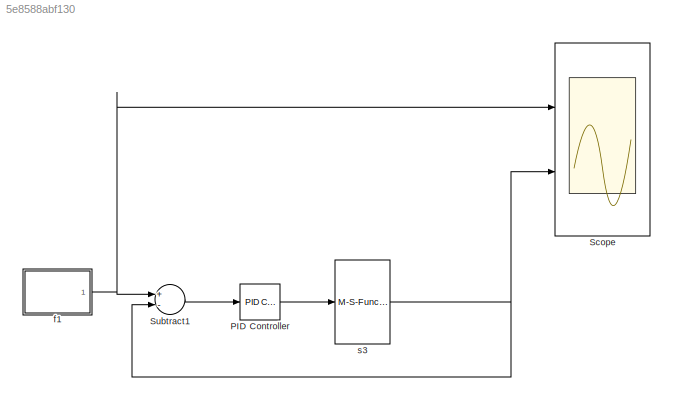
MODEL slx_5e8588abf130
KIND model
CONFIG AbsTol = auto
CONFIG EnableMultiTasking = off
CONFIG FixedStep = auto
CONFIG MaxStep = auto
CONFIG MinStep = auto
CONFIG RelTol = 1e-3
CONFIG SampleTimeConstraint = Unconstrained
CONFIG Solver = VariableStepAuto
CONFIG SolverName = VariableStepAuto
CONFIG StartTime = 0.0
CONFIG StopTime = 200
BLOCK [Reference] PID Controller  REF=simulink/Continuous/PID Controller
  Ports = [1, 1]
  SourceBlock = simulink/Continuous/PID Controller
  SourceProductBaseCode = SL
  SourceProductName = Simulink
  SourceType = PID 1dof
BLOCK [Scope] Scope
  Floating = off
  NumInputPorts = 2
  Ports = [2]
  ScopeSpecificationString = Simulink.scopes.TimeScopeBlockCfg('CurrentConfiguration', extmgr.ConfigurationSet(extmgr.Configuration('Core','General UI',true),extmgr.Configuration('Core','Source UI',true),extmgr.Configuration('Sources','WiredSimulink',true),extmgr.Configuration('Visuals','Time Domain',true,'SerializedDisplays',{struct('MinYLimReal','-1.45352','MaxYLimReal','2.29667','YLabelReal','','MinYLimMag','0.00000','MaxY...<+1424ch>
BLOCK [Sum] Subtract1
  InputSameDT = off
  Inputs = +-
  OutDataTypeStr = Inherit: Inherit via internal rule
  Ports = [2, 1]
  SaturateOnIntegerOverflow = off
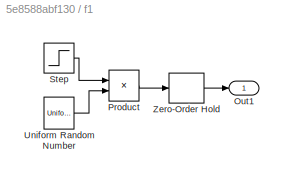
BLOCK [SubSystem] f1
  Ports = [0, 1]
  RequestExecContextInheritance = off
BLOCK [Outport] f1/Out1
  IconDisplay = Port number
BLOCK [Product] f1/Product
  InputSameDT = off
  OutDataTypeStr = Inherit: Inherit via internal rule
  Ports = [2, 1]
  SaturateOnIntegerOverflow = off
BLOCK [Step] f1/Step
  SampleTime = 0
  Time = 0
BLOCK [UniformRandomNumber] f1/Uniform Random Number
  Maximum = S
  Minimum = L
  SampleTime = 0
BLOCK [ZeroOrderHold] f1/Zero-Order Hold
  SampleTime = T
BLOCK [M-S-Function] s3
  FunctionName = whoknows
  Parameters = L, P1, P2, T, R
  Ports = [1, 1]
LINE PID Controller:1 -> s3:1
LINE Subtract1:1 -> PID Controller:1
LINE f1/Product:1 -> f1/Zero-Order Hold:1
LINE f1/Step:1 -> f1/Product:1
LINE f1/Uniform Random Number:1 -> f1/Product:2
LINE f1/Zero-Order Hold:1 -> f1/Out1:1
NET f1:1 -> Scope:1, Subtract1:1
NET s3:1 -> Scope:2, Subtract1:2
note: NET lines group one-source signal fan-out (src -> all destinations, sorted); 1:1 wires keep LINE
